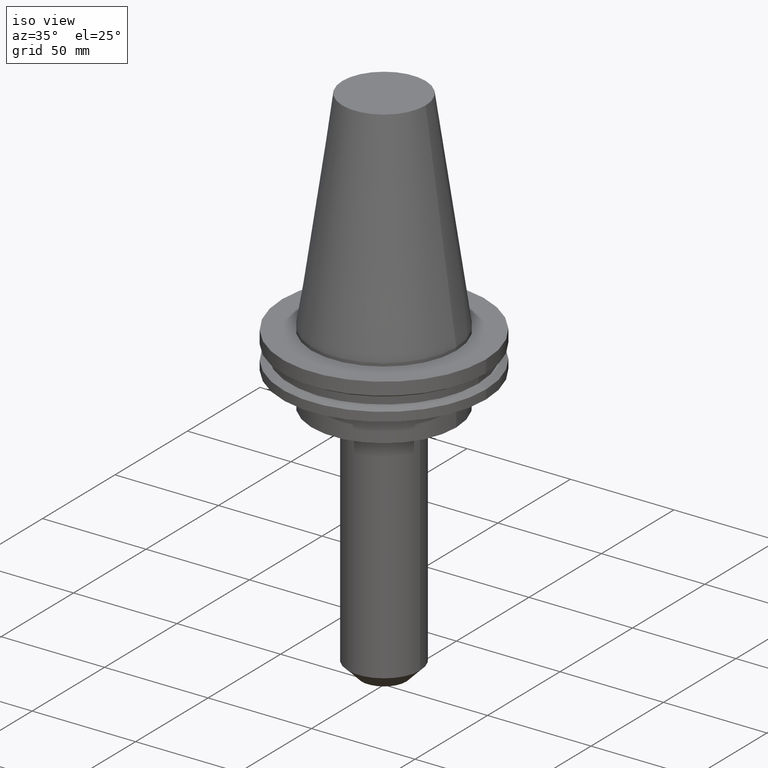
[diagram: clean part render]
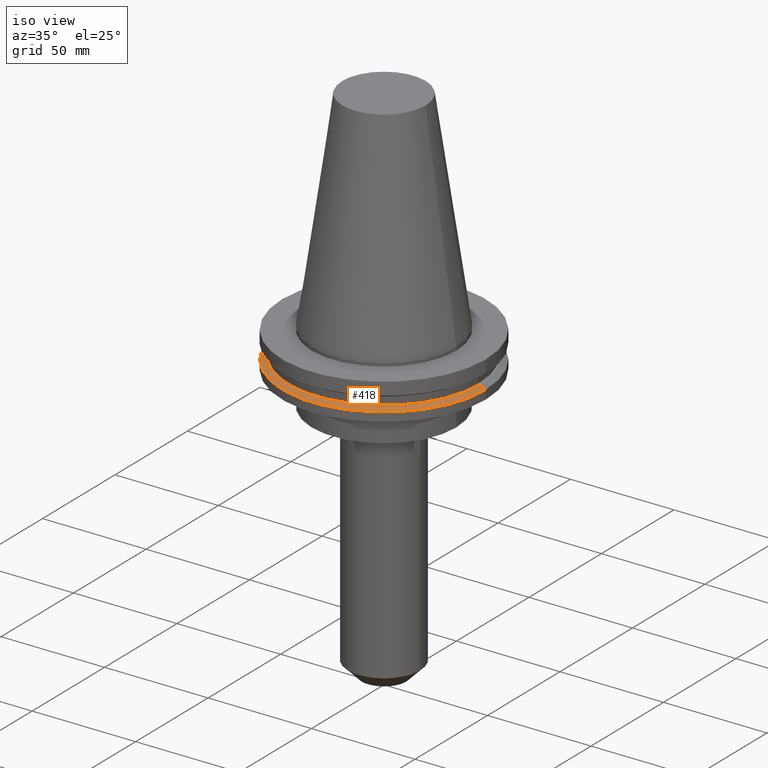
[diagram: same view with one face highlighted and labeled with its STEP entity id]
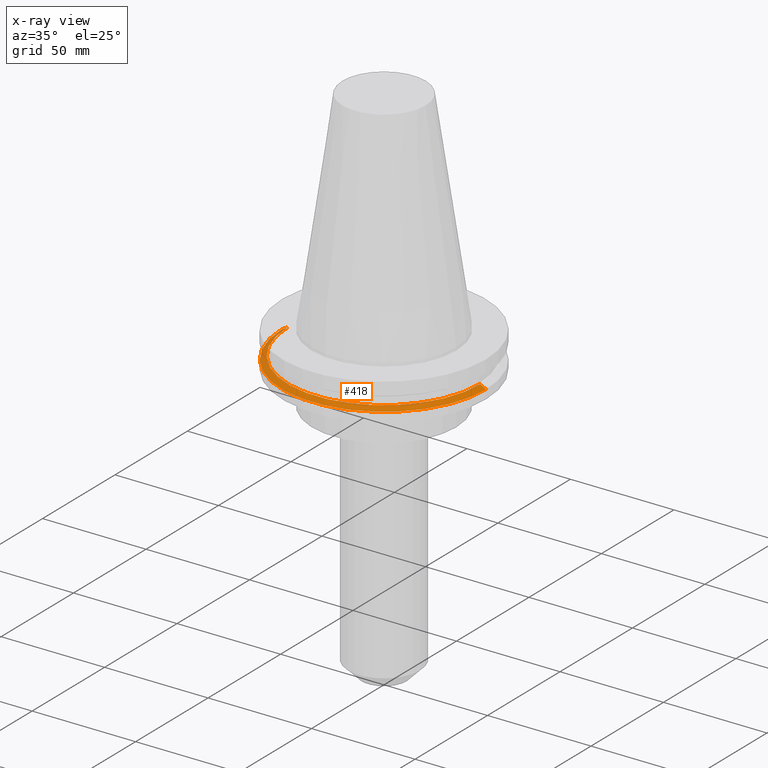
[diagram: x-ray of the same camera — body ghosted, the highlighted face saturated]
A machine part, iso view. The second image highlights one B-rep face of the part: STEP entity #418.
The next image is the same camera in x-ray: the body ghosted, the highlighted face saturated — about 0% of this face is hidden behind the body in this view.
In plain terms, the highlighted conical surface has half-angle 60 deg.
Its self-contained STEP definition (entity closure, byte-faithful):
#11 = VERTEX_POINT ( 'NONE', #688 ) ;
#77 = DIRECTION ( 'NONE',  ( -1.000000000000000000, 0.000000000000000000, 0.000000000000000000 ) ) ;
#81 = LINE ( 'NONE', #748, #483 ) ;
#93 = DIRECTION ( 'NONE',  ( 0.000000000000000000, 0.000000000000000000, -1.000000000000000000 ) ) ;
#143 = DIRECTION ( 'NONE',  ( 1.000000000000000000, 0.000000000000000000, 0.000000000000000000 ) ) ;
#150 = CARTESIAN_POINT ( 'NONE',  ( 0.000000000000000000, 0.000000000000000000, -14.65761014474876944 ) ) ;
#159 = DIRECTION ( 'NONE',  ( -0.000000000000000000, -0.000000000000000000, 1.000000000000000000 ) ) ;
#191 = VECTOR ( 'NONE', #439, 1000.000000000000114 ) ;
#207 = DIRECTION ( 'NONE',  ( 1.000000000000000000, 0.000000000000000000, 0.000000000000000000 ) ) ;
#220 = FACE_OUTER_BOUND ( 'NONE', #771, .T. ) ;
#228 = CIRCLE ( 'NONE', #454, 49.21499999999998920 ) ;
#265 = CARTESIAN_POINT ( 'NONE',  ( 46.43919780457007818, 5.857130358318725715E-15, -13.05499999999999794 ) ) ;
#285 = DIRECTION ( 'NONE',  ( 0.8660254037844169472, 1.060575238724880168E-16, -0.5000000000000375255 ) ) ;
#317 = ORIENTED_EDGE ( 'NONE', *, *, #506, .F. ) ;
#351 = ORIENTED_EDGE ( 'NONE', *, *, #429, .T. ) ;
#394 = CARTESIAN_POINT ( 'NONE',  ( -49.21499999999998920, 6.027099222003697037E-15, -14.65761014474876944 ) ) ;
#407 = CARTESIAN_POINT ( 'NONE',  ( -46.43919780457007818, 0.000000000000000000, -13.05499999999999794 ) ) ;
#418 = ADVANCED_FACE ( 'NONE', ( #220 ), #780, .T. ) ;
#429 = EDGE_CURVE ( 'NONE', #721, #11, #228, .T. ) ;
#439 = DIRECTION ( 'NONE',  ( -0.8660254037844169472, 0.000000000000000000, -0.5000000000000375255 ) ) ;
#454 = AXIS2_PLACEMENT_3D ( 'NONE', #816, #159, #207 ) ;
#466 = EDGE_CURVE ( 'NONE', #497, #11, #81, .T. ) ;
#471 = DIRECTION ( 'NONE',  ( -0.000000000000000000, -0.000000000000000000, 1.000000000000000000 ) ) ;
#483 = VECTOR ( 'NONE', #285, 1000.000000000000114 ) ;
#494 = ORIENTED_EDGE ( 'NONE', *, *, #523, .T. ) ;
#497 = VERTEX_POINT ( 'NONE', #265 ) ;
#502 = AXIS2_PLACEMENT_3D ( 'NONE', #150, #93, #77 ) ;
#506 = EDGE_CURVE ( 'NONE', #514, #497, #798, .T. ) ;
#511 = LINE ( 'NONE', #572, #191 ) ;
#514 = VERTEX_POINT ( 'NONE', #407 ) ;
#523 = EDGE_CURVE ( 'NONE', #514, #721, #511, .T. ) ;
#531 = ORIENTED_EDGE ( 'NONE', *, *, #466, .F. ) ;
#540 = AXIS2_PLACEMENT_3D ( 'NONE', #730, #471, #143 ) ;
#572 = CARTESIAN_POINT ( 'NONE',  ( -49.21499999999998920, 0.000000000000000000, -14.65761014474876944 ) ) ;
#688 = CARTESIAN_POINT ( 'NONE',  ( 49.21499999999998920, 0.000000000000000000, -14.65761014474876944 ) ) ;
#721 = VERTEX_POINT ( 'NONE', #394 ) ;
#730 = CARTESIAN_POINT ( 'NONE',  ( 0.000000000000000000, 0.000000000000000000, -13.05499999999999794 ) ) ;
#748 = CARTESIAN_POINT ( 'NONE',  ( 49.21499999999998920, 6.027099222003697037E-15, -14.65761014474876944 ) ) ;
#771 = EDGE_LOOP ( 'NONE', ( #531, #317, #494, #351 ) ) ;
#780 = CONICAL_SURFACE ( 'NONE', #502, 49.21499999999998920, 1.047197551196554333 ) ;
#798 = CIRCLE ( 'NONE', #540, 46.43919780457007818 ) ;
#816 = CARTESIAN_POINT ( 'NONE',  ( 0.000000000000000000, 0.000000000000000000, -14.65761014474876944 ) ) ;